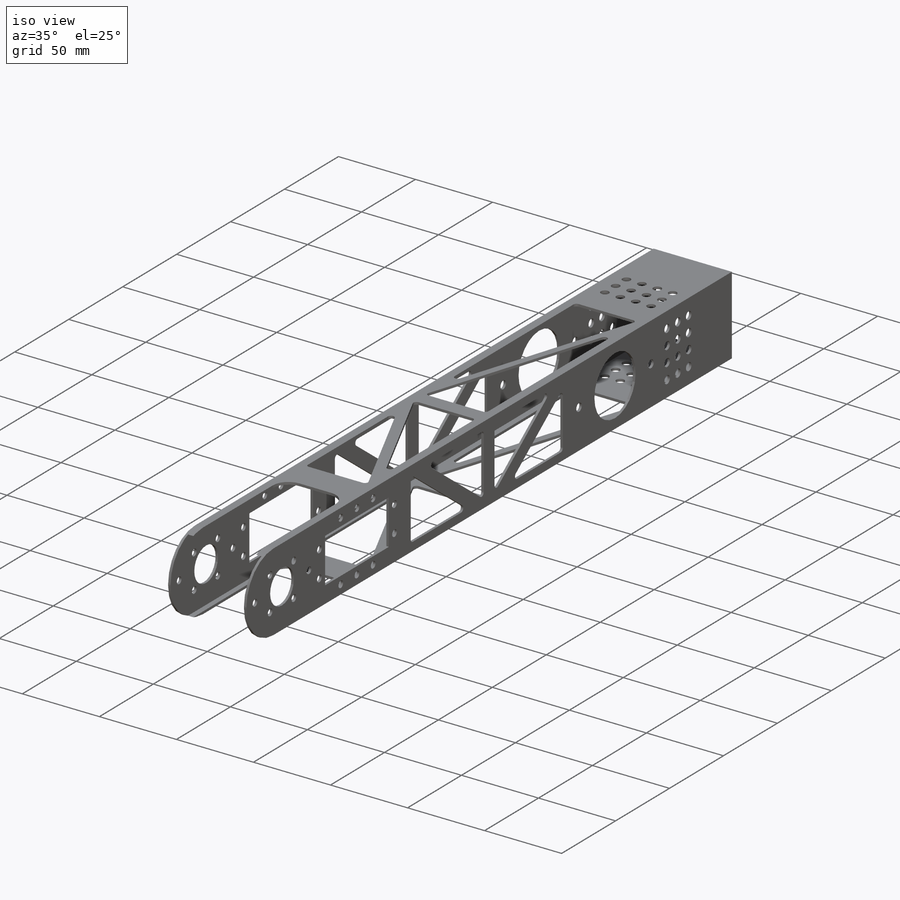
[diagram: iso view]
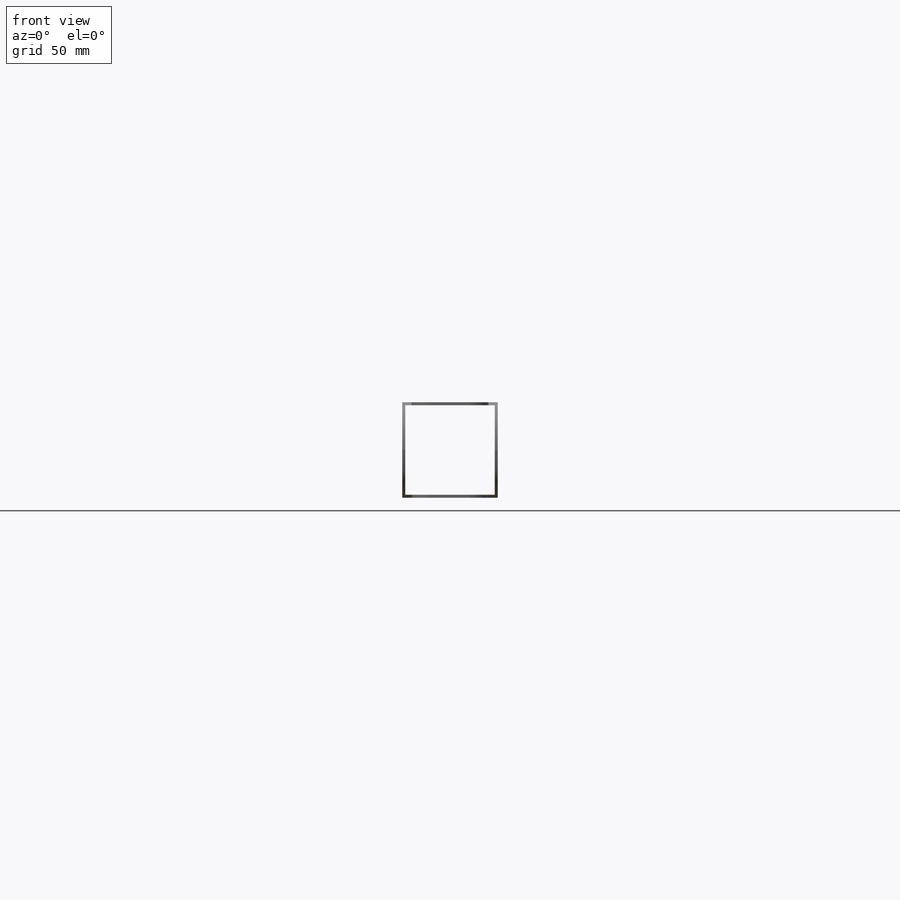
[diagram: front view]
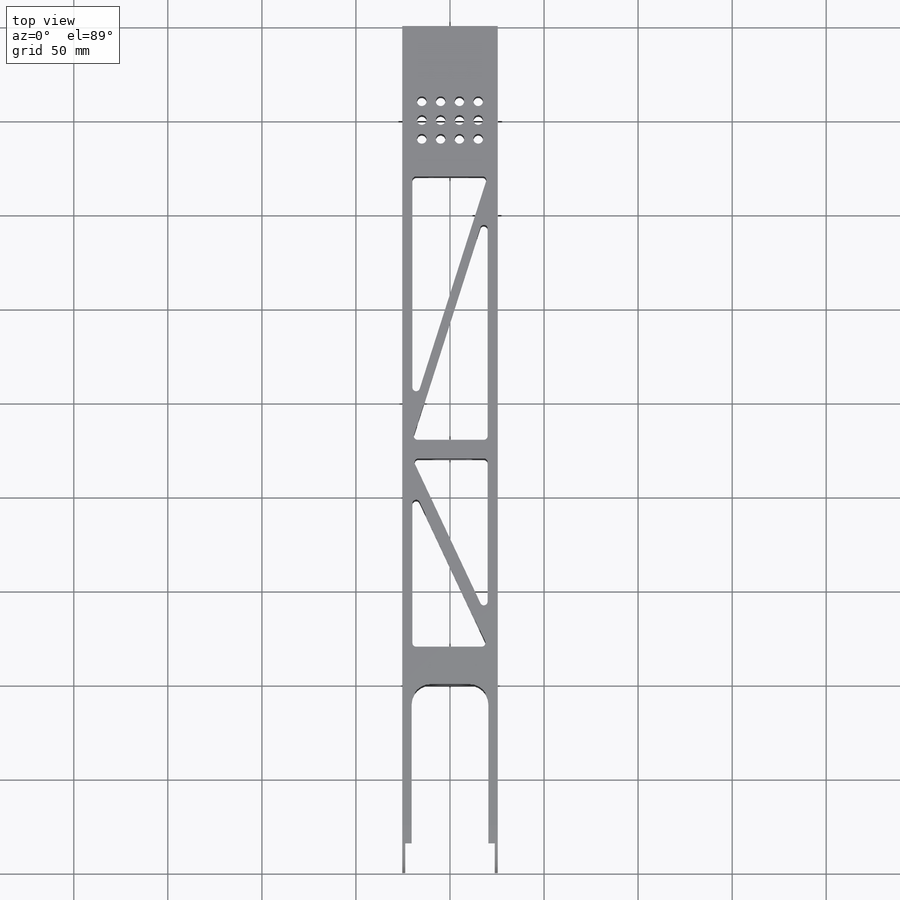
[diagram: top view]
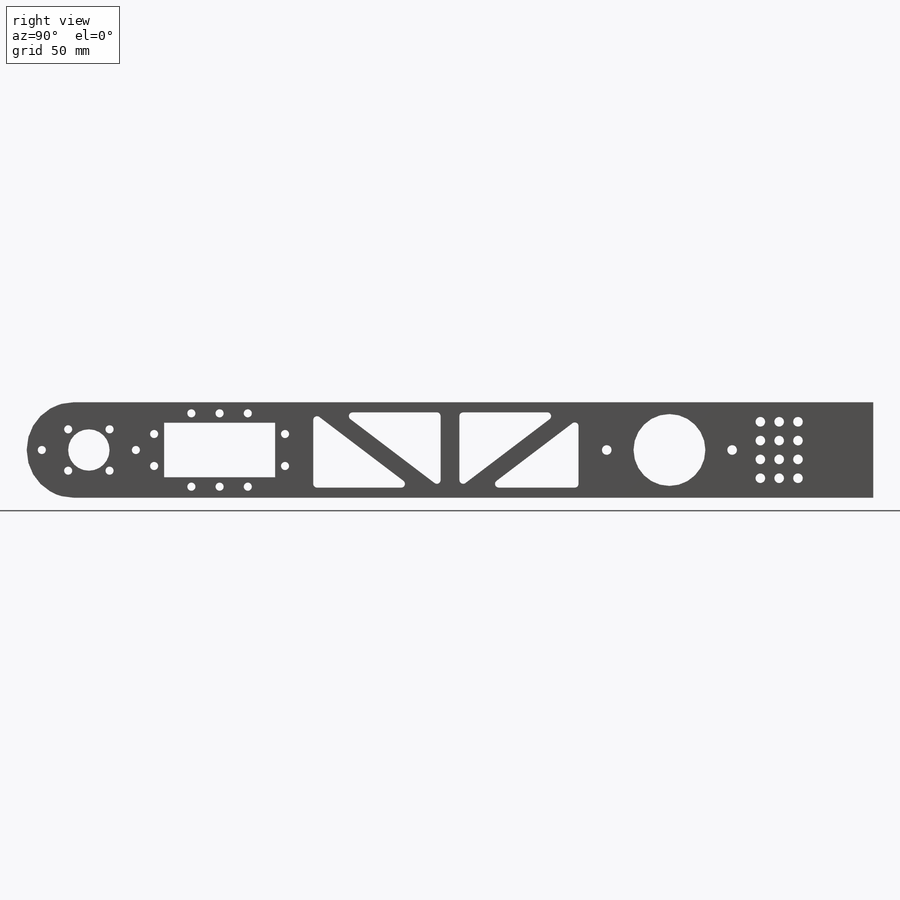
[diagram: right view]
SOLIDWORKS PART (.sldprt)
format: sldprt  version: not decoded by parser v0  size: 797,696 bytes
history: native  units: mm
features: sketch x8, cut_extrude x7, fillet x2, material x1, extrude x1 (+12 scaffold rows collapsed)
feature tree (31):
  scaffold x12  (default folders/planes/origin — collapsed)
  material  "Alloy Steel"
  sketch  "Sketch1"  dims[D1=50.8mm D2=50.8mm D3=1.5875mm D4=1.5875mm D5=50.8mm]
  extrude  "Boss-Extrude1"  Depth=400mm
  sketch  "Sketch2"  dims[D1=38.2mm D5=5.1mm D6=5.1mm D2=66.667mm D3=33.333mm D4=75.0mm]
  cut_extrude  "Cut-Extrude1"  [1 undecoded]
  sketch  "Sketch3"  dims[D4=10.0mm D1=5.0mm D2=5.0mm D3=100.0mm]
  cut_extrude  "Cut-Extrude2"  [1 undecoded]
  fillet  "Fillet1"  Radius=1mm
  sketch  "Sketch4"  dims[c1.D1=5.1mm c1.D2=15.0mm c1.D3=~15.004888mm c2.D3=90.0deg c3.D3=40.0mm c3.D4=3.0 c3.D5=4.0]
  cut_extrude  "Cut-Extrude3"  [1 undecoded]
  sketch  "Sketch6"  dims[D1=5.1mm D2=15.0mm D3=40.0mm D4=4.0 D5=3.0]
  cut_extrude  "Cut-Extrude4"  [1 undecoded]
  sketch  "Sketch7"  dims[c1.D1=22.0mm c1.D2=4.3mm c1.D8=4.3mm c1.D10=4.3mm c1.D14=4.3mm c1.D21=4.3mm c1.D22=4.3mm c1.D23=4.3mm c1.D29=4.3mm c1.D30=4.3mm c1.D31=4.3mm c1.D15=4.3mm c1.D35=4.3mm c1.D36=4.3mm c1.D37=4.3mm c1.D39=4.3mm c1.D40=4.3mm c1.D3=11.0mm c1.D4=11.0mm c1.D5=0.0mm c1.D9=25.0mm c1.D11=50.0mm c1.D12=59.0mm c1.D13=29.0mm c2.D14=15.0mm c2.D15=8.0mm c2.D16=14.5mm c2.D17=0.0mm c2.D18=0.0mm c2.D19=15.0mm c2.D20=15.0mm c2.D24=5.0mm c2.D25=5.0mm c2.D26=5.0mm c2.D27=0.0mm c2.D28=0.0mm c2.D32=~6.670392mm c2.D33=~4.229608mm c3.D32=5.0mm c3.D33=5.0mm c3.D34=5.0mm c3.D38=34.8mm c3.D39=69.6mm c3.D40=~62.620095mm c3.D41=8.5mm c3.D42=8.5mm c3.D43=34.8mm c4.D40=69.6mm c4.D44=8.5mm c4.D45=8.5mm c4.D46=8.0mm c4.D6=2.0 c4.D7=2.0]
  cut_extrude  "Cut-Extrude5"  [1 undecoded]
  sketch  "Sketch8"  dims[c1.D13=2.0mm c1.D1=250.0mm c1.D2=15.0mm c1.D3=10.0mm c1.D4=15.0mm c1.D5=~200.191716mm c1.D6=15.0mm c1.D7=15.0mm c1.D8=40.0mm c1.D9=40.0mm c1.D10=40.0mm c1.D11=20.4mm c1.D12=20.0mm c2.D11=20.0mm c2.D13=19.6mm c2.D5=40.0mm c2.D8=20.0mm c2.D14=20.0mm c2.D15=20.0mm c2.D16=5.0mm c3.D5=180.0deg]
  cut_extrude  "Cut-Extrude6"  [1 undecoded]
  sketch  "Sketch9"  dims[c1.D15=2.0mm c1.D14=5.1mm c1.D1=140.0mm c1.D2=15.0mm c1.D3=10.0mm c1.D4=15.0mm c1.D5=15.0mm c1.D6=0.0mm c1.D7=40.0mm c1.D8=40.0mm c1.D9=40.0mm c2.D5=15.0mm c2.D4=15.0mm c2.D2=15.0mm c2.D10=15.0mm c2.D11=20.0mm c2.D12=20.0mm c2.D13=20.0mm c2.D14=70.0mm c2.D16=62.0mm c2.D17=31.0mm c2.D18=15.5mm c2.D19=8.0mm c3.D14=15.0mm c3.D16=15.0mm c3.D17=5.0mm c3.D3=5.0mm c4.D14=15.0mm c4.D16=19.367mm c4.D5=15.0mm]
  cut_extrude  "Cut-Extrude7"  [1 undecoded]
  fillet  "Fillet2"  Radius=25mm
decode coverage: 11 of 18 modeling features carry decoded parameters
note: ~ marks probable driven/reference dimensions
note: 7 parameter values undecoded
summary: no parameter record found for 7 features
note: suppression state not decoded; provenance and decode notes live in map.json
